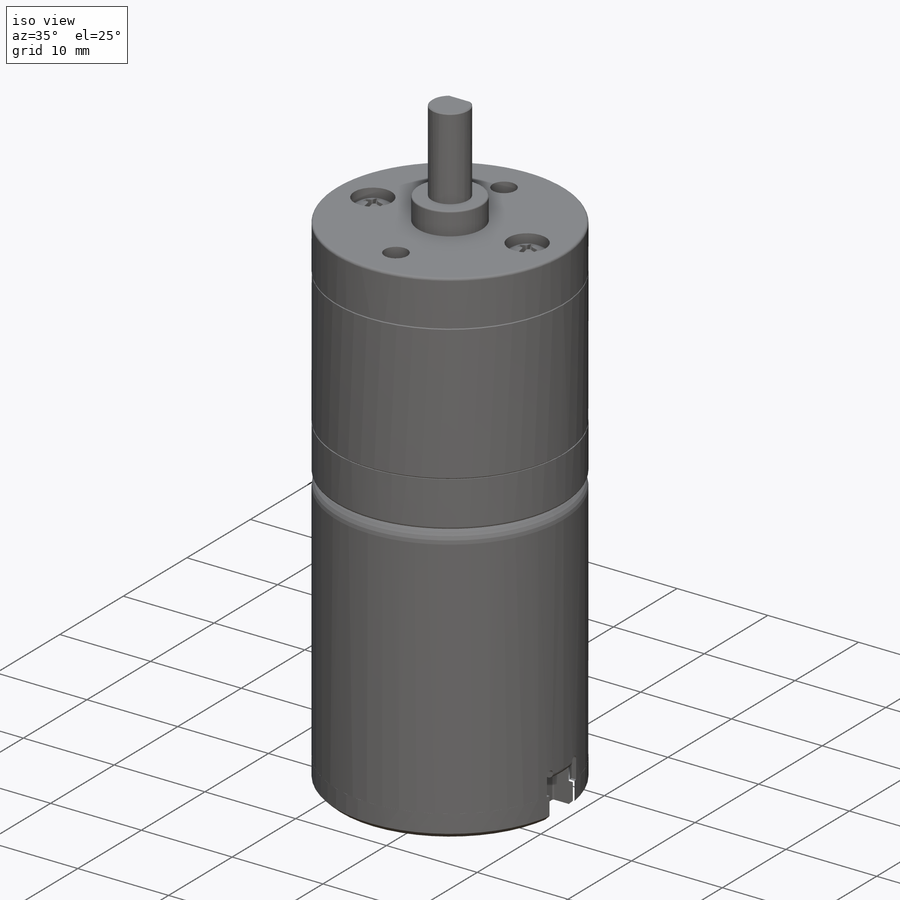
[diagram: iso view]
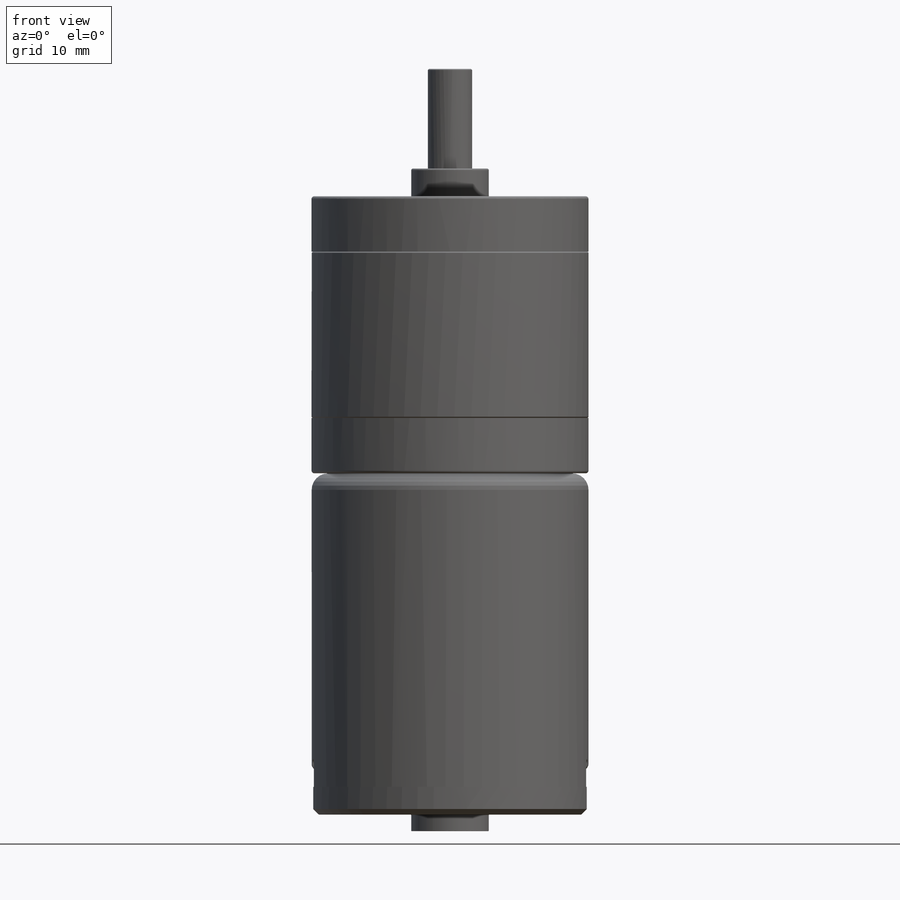
[diagram: front view]
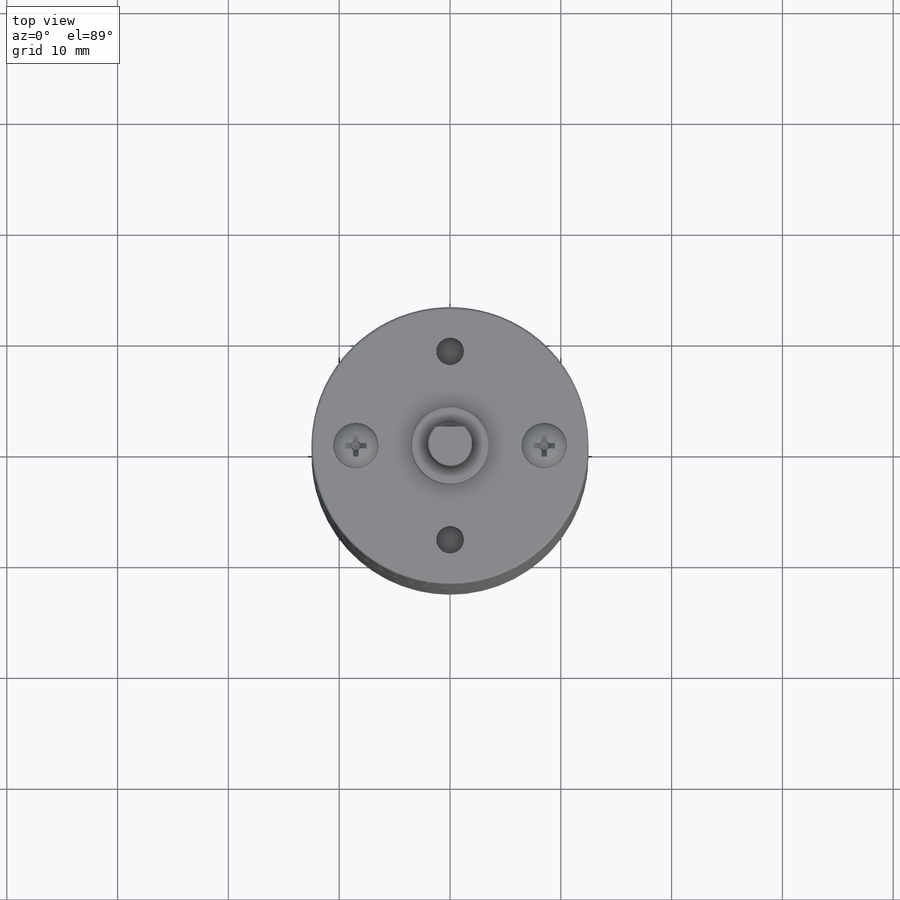
[diagram: top view]
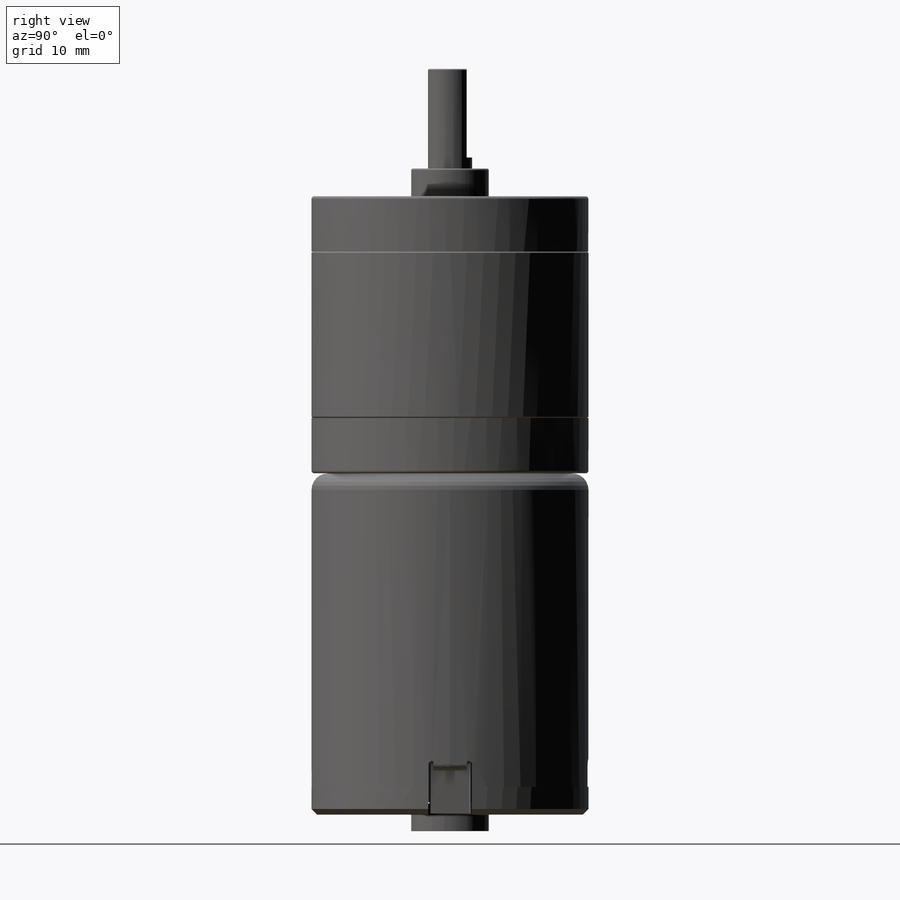
[diagram: right view]
SOLIDWORKS PART (.sldprt)
format: sldprt  version: not decoded by parser v0  size: 8,332,800 bytes
history: native  units: mm
features: sketch x24, plane x7, fillet x7, extrude x6, thread x5, cut_extrude x4, revolve x4, hole x2, pattern_circular x2, material x1, chamfer x1, cut_revolve x1, mirror x1, delete_body x1 (+12 scaffold rows collapsed)
feature tree (78):
  scaffold x12  (default folders/planes/origin — collapsed)
  material  "Material <not specified>"
  sketch  "Sketch1"  dims[D1=25.0mm D2=4.0mm D3=7.0mm D4=17.0mm D5=4.1mm]
  extrude  "front flange"  Depth=5mm
  sketch  "Sketch2"
  extrude  "front slip bearing"  Depth=2.5mm
  plane  "gearbox-motor"  Offset=25mm
  plane  "end motor"  Offset=30.8mm
  plane  "output shaft end"  Offset=11.5mm
  hole  "M3 Tapped Hole1"  Diameter=2.5mm Depth=5mm
  sketch  "Sketch5"
  sketch  "Sketch4"  dims[hole-wizard template sketch: 61 standard entries collapsed; hole parameters above]
  thread  "Hole Thread1"  Diameter=3mm  [1 undecoded]
  hole  "CBORE for M2 Pan Head Screw1"  Diameter=2.2mm Depth=5mm
  sketch  "Sketch7"
  sketch  "Sketch6"  dims[hole-wizard template sketch: 42 standard entries collapsed; hole parameters kept: c12.Thru Hole Depth=5.0mm c12.C'Bore Dia.=4.1mm c12.C'Bore Depth=2.0mm]
  thread  "Axis2"  [2 undecoded]
  thread  "Axis3"  [2 undecoded]
  thread  "Axis4"  [2 undecoded]
  sketch  "Sketch9"
  extrude  "output shaft"  [1 undecoded]
  thread  "main shaft"  [2 undecoded]
  chamfer  "Chamfer1"  Distance=0.1mm Angle=45deg
  sketch  "Sketch10"  dims[D2=3.5mm D1=0.0mm]
  cut_extrude  "Cut-Extrude1"  Depth=8mm
  sketch  "Sketch3"  dims[D1=0.0mm]
  extrude  "rear flange"  Depth=5mm
  sketch  "Sketch8"  dims[D1=3.0mm D2=7.0mm D3=2.5mm D4=1.5mm D5=5.0mm]
  revolve  "annular gear"  Angle=360deg
  fillet  "Fillet1"  Radius=0.25mm
  fillet  "Fillet2"  Radius=0.25mm
  fillet  "Fillet3"  Radius=0.15mm
  sketch  "Sketch11"  dims[c1.D4=~1.169452mm c1.D5=3.2mm c1.D7=0.18mm c1.D9=0.1mm c1.Diameter=2.5mm c1.D2=76.2mm c1.D3=5.842mm c2.D4=~18.513272mm c3.D4=82.0deg c3.D5=~19.681746mm c4.D4=19.3548mm c4.D5=~7.740726mm c5.D5=~80.148096deg c5.Length=5.0mm c5.Head_ht=1.5mm c5.Head_dia=4.7mm c6.D5=~8.373577mm c6.Head_ang=90.0deg c6.D6=0.4mm c6.D7=88.9mm c6.Advance=0.45mm c6.Thread_nom=5.0mm c6.Thread_lim=30.6705mm c6.D1=0.4mm c6.D2=4.7mm c6.D3=2.0mm c6.D4=5.0mm c7.D5=1.1mm c8.D5=45.0deg c8.D7=1.5mm c8.D1=4.0mm c8.D2=5.0mm c8.D4=1.6mm c8.D6=1.6mm c8.D8=1.42mm]
  revolve  "Revolve2"  Angle=360deg
  plane  "Plane1"
  sketch  "Sketch12"  dims[c1.D1=0.74mm c1.D2=2.8mm c2.D1=0.48mm c2.D2=2.1mm]
  plane  "Plane4"
  sketch  "Sketch13"  dims[c1.D1=0.74mm c1.D2=~1.157172mm c2.D1=0.684mm]
  pattern_circular  "CirPattern1"  Count=2 Angle=90deg
  sketch  "Sketch14"  dims[c1.D1=~2.873581mm c2.D1=4.0deg c2.D2=~1.256211mm c3.D2=18.0deg c3.D3=0.711mm]
  cut_revolve  "Cut-Revolve1"  Angle=360deg
  pattern_circular  "CirPattern2"  Count=2 Angle=360deg
  sketch  "Sketch15"  dims[D13=0.05mm D1=1.0mm D2=2.5mm D3=1.0mm D4=1.0mm D5=1.0mm D6=7.0mm D7=1.5mm D8=0.5mm D9=3.0mm D10=0.5mm D11=0.5mm D12=25.0mm]
  sketch  "Sketch16"  dims[c1.D1=1.0mm c1.D2=1.5mm c2.D1=~1.050482mm]
  revolve  "motor case"  Angle=360deg
  revolve  "back plate"  Angle=360deg
  sketch  "Sketch17"  dims[D4=0.4mm D1=3.0mm D2=0.801mm D3=2.5mm]
  sketch  "Sketch18"  dims[c1.D4=0.4mm c1.D3=0.75mm c1.D1=3.0mm c1.D2=0.801mm c2.D3=2.5mm c2.D1=90.0deg c3.D1=3.0mm c3.D2=2.5mm]
  cut_extrude  "Cut-Extrude2"  [1 undecoded]
  cut_extrude  "Cut-Extrude3"  [1 undecoded]
  sketch  "Sketch19"  dims[c1.D1=~2.268538mm c1.D2=~27.978636mm c2.D1=30.0mm]
  cut_extrude  "Cut-Extrude4"  [1 undecoded]
  sketch  "Sketch21"  dims[D2=~0.775377mm D1=0.0mm]
  sketch  "Sketch20"  dims[D3=0.35mm D1=2.0mm D2=0.351mm]
  plane  "Plane5"
  sketch  "Sketch22"  dims[c1.D1=0.5mm c1.D2=3.0mm c2.D1=0.5mm c2.D2=3.0mm]
  mirror  "Mirror1"
  plane  "Plane6"
  sketch  "Sketch23"  dims[c1.D1=3.0mm c1.D2=~3.254129mm c2.D1=3.5mm c2.D2=0.05mm c2.D3=3.0mm]
  extrude  "Boss-Extrude5"  Depth=5mm
  fillet  "Fillet4"  Radius=0.05mm
  fillet  "Fillet5"  Radius=0.05mm
  fillet  "Fillet6"  Radius=0.1mm
  fillet  "Fillet7"  Radius=0.1mm
  delete_body  "Body-Delete1"
  sketch  "Sketch24"  dims[c1.D4=0.8mm c1.D5=0.8mm c1.D1=3.8mm c1.D2=2.2mm c2.D1=3.8mm c2.D2=2.2mm c2.D3=7.0mm c2.D6=2.8mm]
  extrude  "Boss-Extrude6"  Depth=0.2mm
decode coverage: 44 of 58 modeling features carry decoded parameters
note: ~ marks probable driven/reference dimensions
note: 13 parameter values undecoded
summary: no parameter record found for 8 features
note: suppression state not decoded; provenance and decode notes live in map.json
